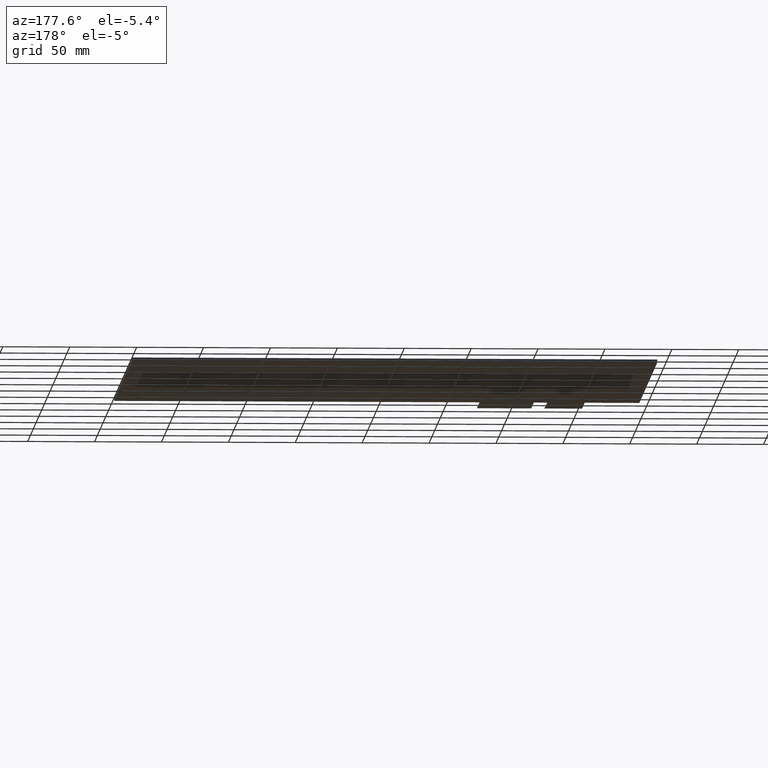
[diagram: clean part render]
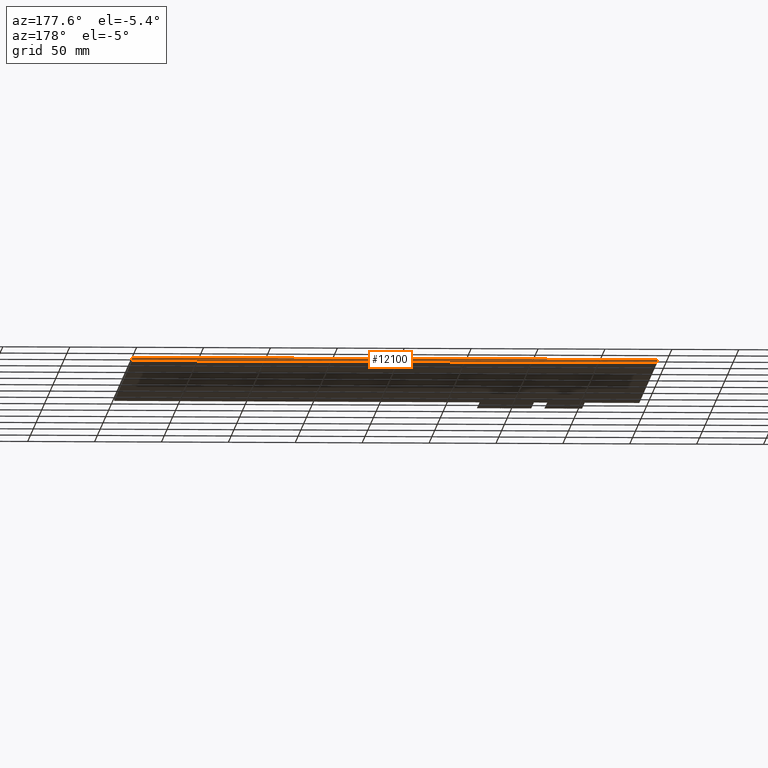
[diagram: same view with one face highlighted and labeled with its STEP entity id]
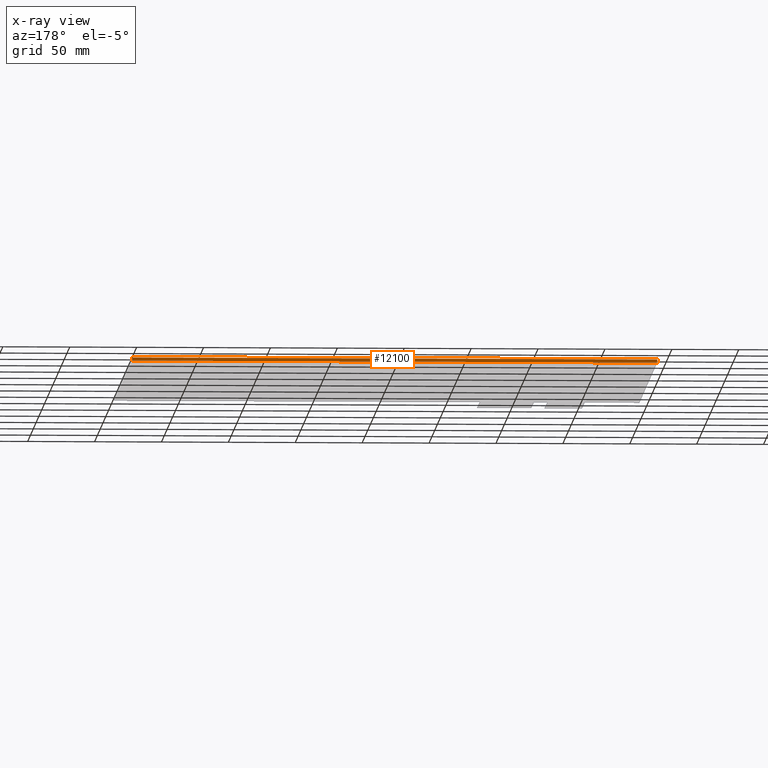
[diagram: x-ray of the same camera — body ghosted, the highlighted face saturated]
A machine part, auxiliary view. The second image highlights one B-rep face of the part: STEP entity #12100.
The next image is the same camera in x-ray: the body ghosted, the highlighted face saturated — about 0% of this face is hidden behind the body in this view.
In plain terms, the highlighted planar face has unit normal (0, 1, 0).
Its self-contained STEP definition (entity closure, byte-faithful):
#642=PLANE('',#12706);
#1220=FACE_OUTER_BOUND('',#1802,.T.);
#1802=EDGE_LOOP('',(#11509,#11510,#11511,#11512));
#3501=LINE('',#19006,#5209);
#3505=LINE('',#19014,#5213);
#3511=LINE('',#19025,#5219);
#3512=LINE('',#19027,#5220);
#5209=VECTOR('',#15567,10.);
#5213=VECTOR('',#15573,10.);
#5219=VECTOR('',#15583,10.);
#5220=VECTOR('',#15586,10.);
#6365=VERTEX_POINT('',#19004);
#6366=VERTEX_POINT('',#19005);
#6369=VERTEX_POINT('',#19013);
#6372=VERTEX_POINT('',#19023);
#8077=EDGE_CURVE('',#6365,#6366,#3501,.T.);
#8081=EDGE_CURVE('',#6366,#6369,#3505,.T.);
#8087=EDGE_CURVE('',#6365,#6372,#3511,.T.);
#8088=EDGE_CURVE('',#6369,#6372,#3512,.T.);
#11509=ORIENTED_EDGE('',*,*,#8077,.F.);
#11510=ORIENTED_EDGE('',*,*,#8087,.T.);
#11511=ORIENTED_EDGE('',*,*,#8088,.F.);
#11512=ORIENTED_EDGE('',*,*,#8081,.F.);
#12100=ADVANCED_FACE('',(#1220),#642,.T.);
#12706=AXIS2_PLACEMENT_3D('',#19026,#15584,#15585);
#15567=DIRECTION('',(-1.,0.,0.));
#15573=DIRECTION('',(0.,0.,-1.));
#15583=DIRECTION('',(0.,0.,-1.));
#15584=DIRECTION('center_axis',(0.,1.,0.));
#15585=DIRECTION('ref_axis',(1.,0.,0.));
#15586=DIRECTION('',(1.,0.,0.));
#19004=CARTESIAN_POINT('',(195.34,157.55,0.));
#19005=CARTESIAN_POINT('',(-197.16,157.55,0.));
#19006=CARTESIAN_POINT('',(195.34,157.55,0.));
#19013=CARTESIAN_POINT('',(-197.16,157.55,-2.35));
#19014=CARTESIAN_POINT('',(-197.16,157.55,0.));
#19023=CARTESIAN_POINT('',(195.34,157.55,-2.35));
#19025=CARTESIAN_POINT('',(195.34,157.55,0.));
#19026=CARTESIAN_POINT('Origin',(-197.16,157.55,0.));
#19027=CARTESIAN_POINT('',(195.34,157.55,-2.35));